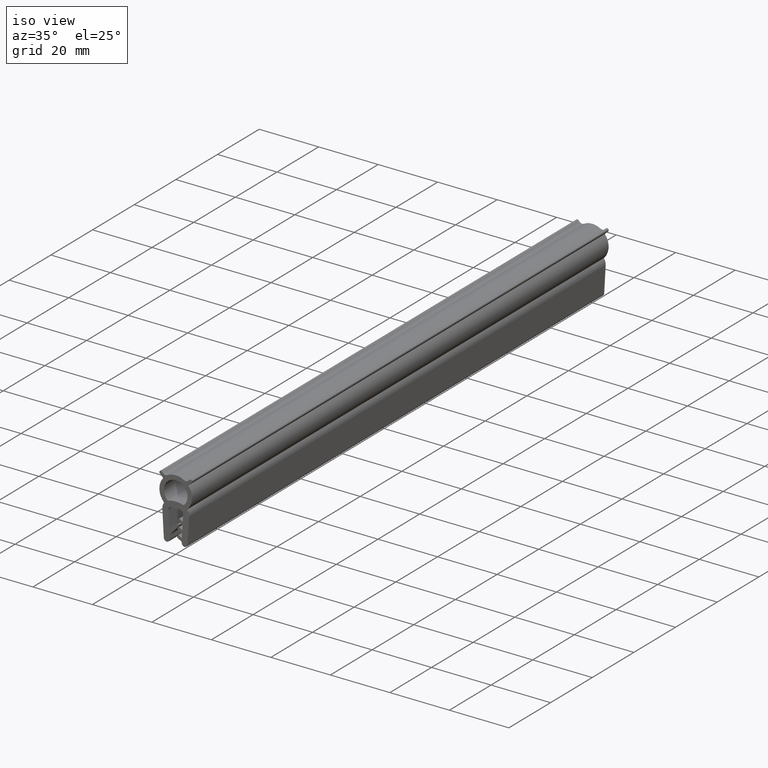
[diagram: clean part render]
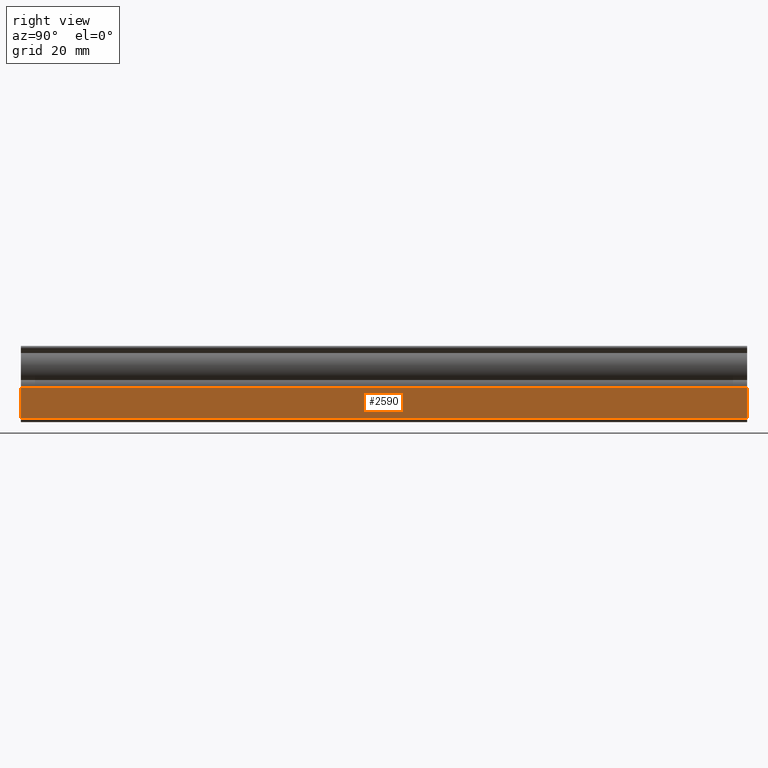
[diagram: tour spotlight — one face highlighted and labeled with its STEP entity id]
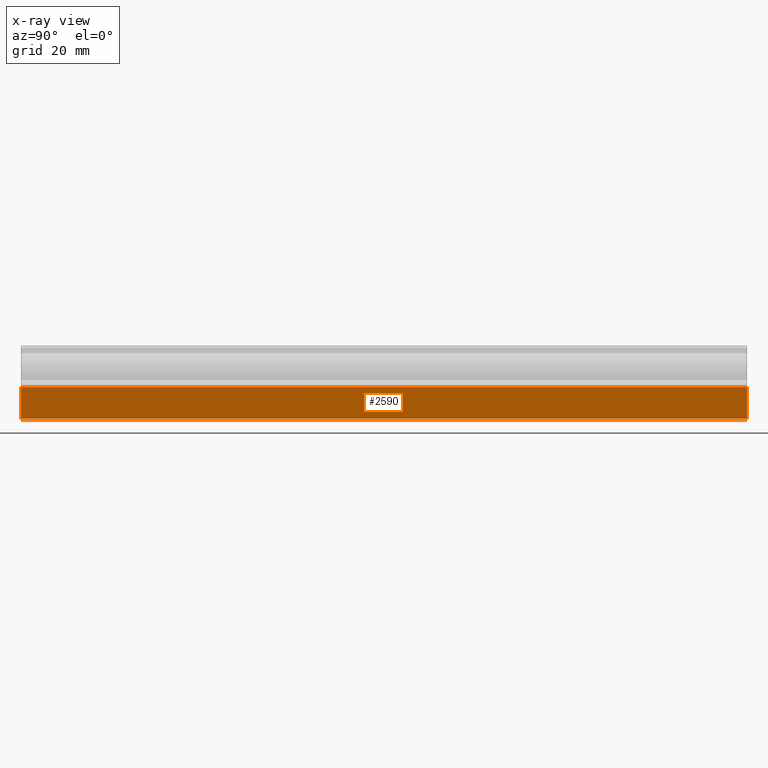
[diagram: x-ray of the same camera — body ghosted, this tour face saturated]
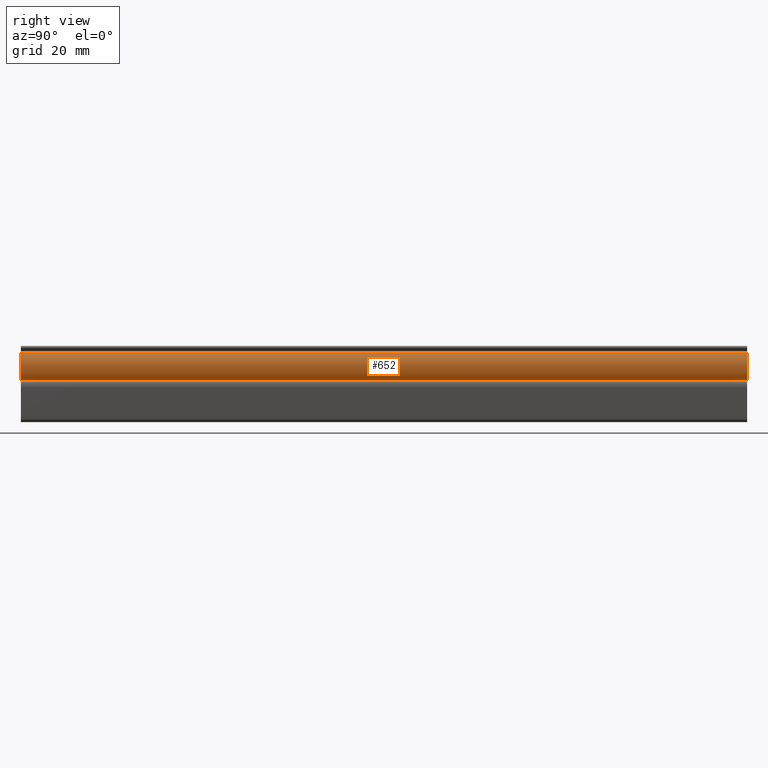
[diagram: tour spotlight — one face highlighted and labeled with its STEP entity id]
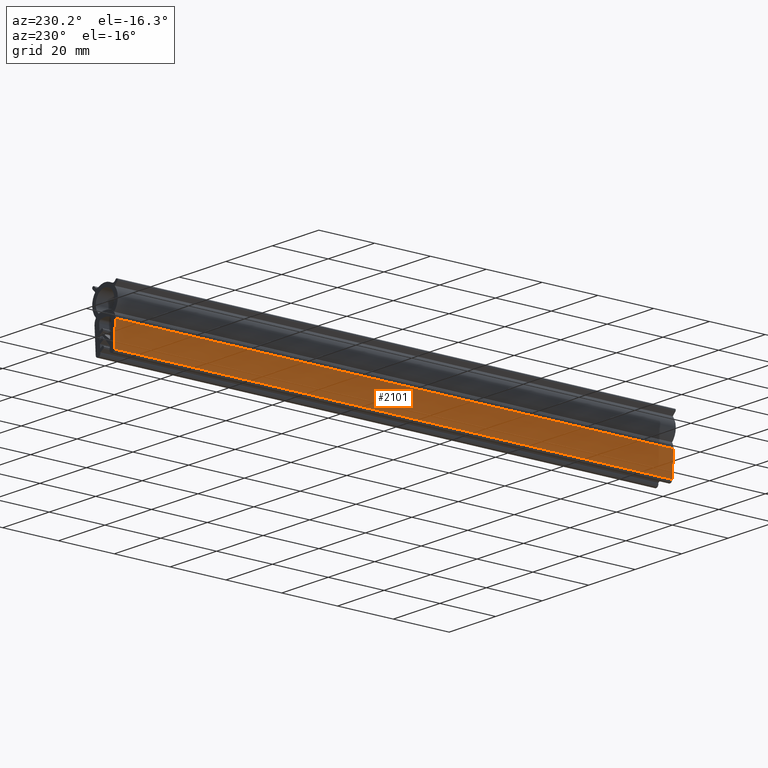
[diagram: tour spotlight — one face highlighted and labeled with its STEP entity id]
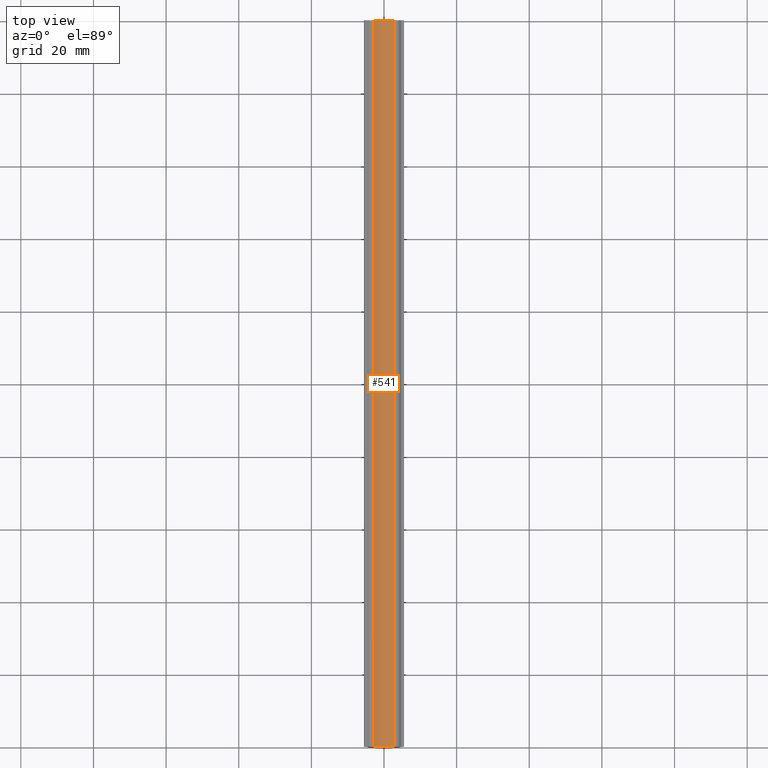
[diagram: tour spotlight — one face highlighted and labeled with its STEP entity id]
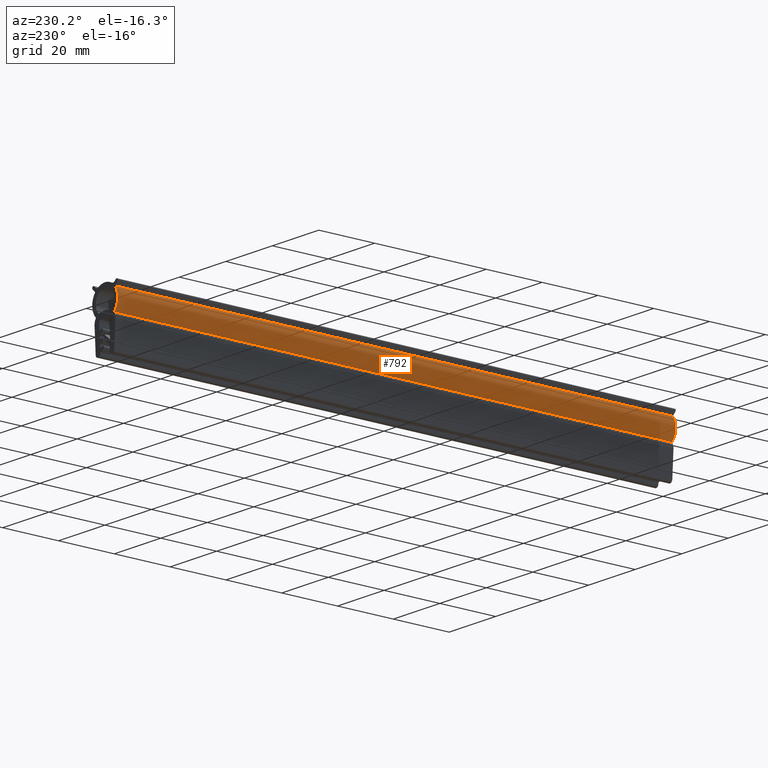
[diagram: tour spotlight — one face highlighted and labeled with its STEP entity id]
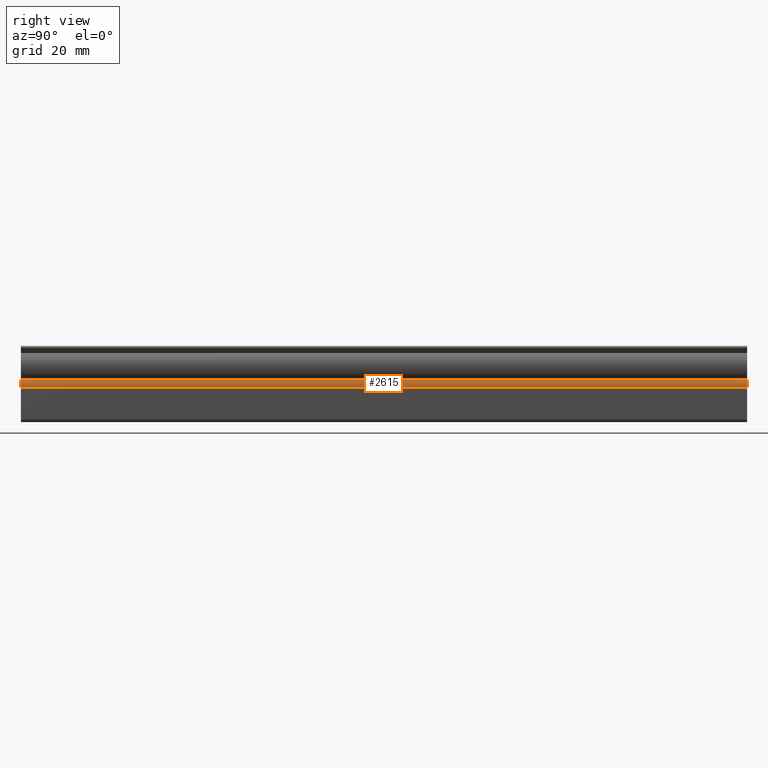
[diagram: tour spotlight — one face highlighted and labeled with its STEP entity id]
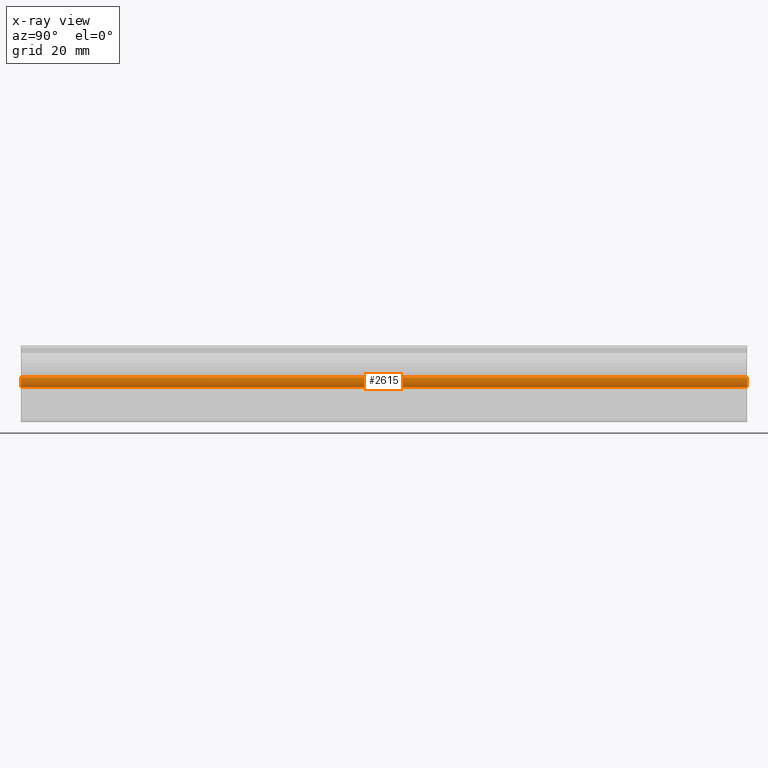
[diagram: x-ray of the same camera — body ghosted, this tour face saturated]
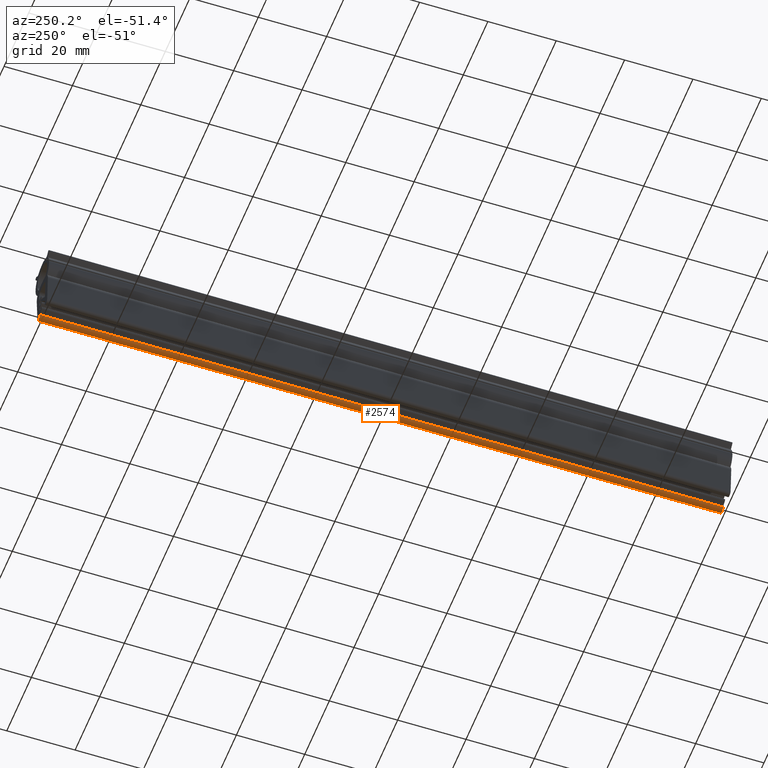
[diagram: tour spotlight — one face highlighted and labeled with its STEP entity id]
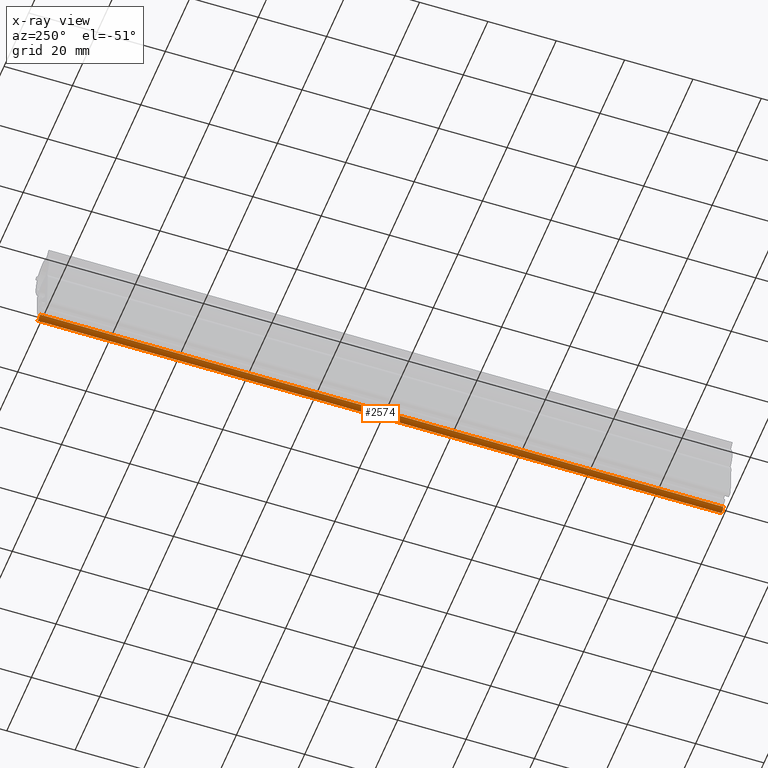
[diagram: x-ray of the same camera — body ghosted, this tour face saturated]
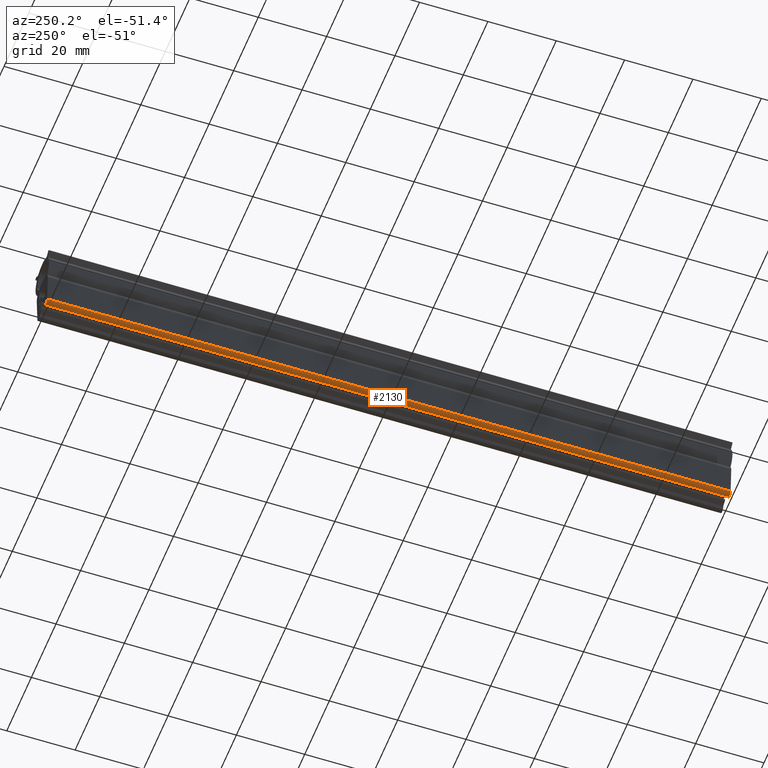
[diagram: tour spotlight — one face highlighted and labeled with its STEP entity id]
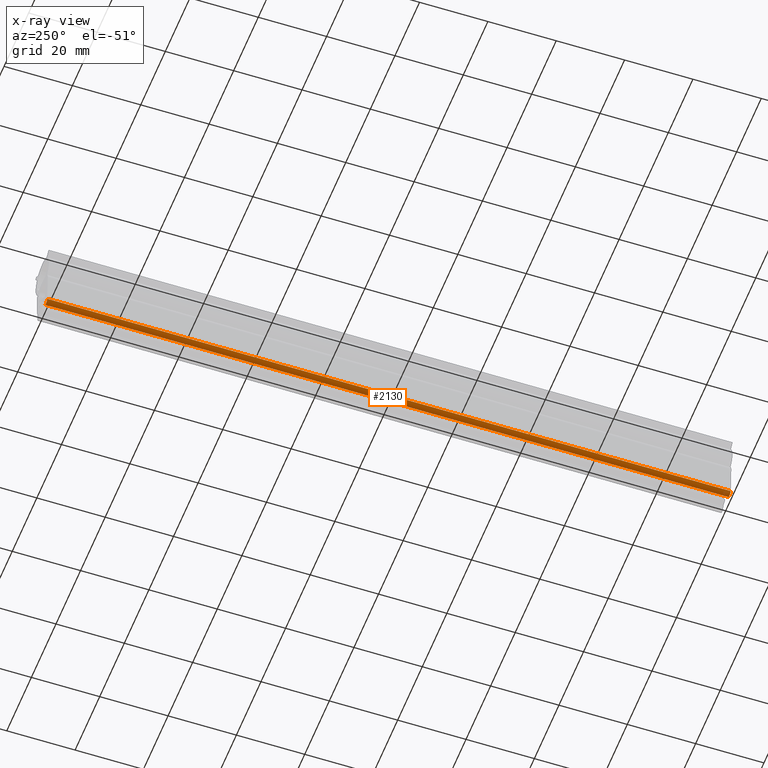
[diagram: x-ray of the same camera — body ghosted, this tour face saturated]
A machine part: a face-by-face anatomy tour. The part has 76 B-rep faces; the first image is the clean iso view, then the 8 largest visible faces are spotlighted one at a time (largest first), each with its STEP entity span.

Face 1 — right view, entity #2590. An x-ray twin of the same camera follows (body ghosted, this face saturated) — the face is partly hidden behind the body. In plain terms, the highlighted face is a freeform B-spline surface patch.
Definition (entity closure, byte-faithful):
#1145=CARTESIAN_POINT('',(3.996700841699980,0.0,-20.057414607798851));
#1146=VERTEX_POINT('',#1145);
#1164=CARTESIAN_POINT('',(4.496700841699891,0.0,-11.363194973417940));
#1165=VERTEX_POINT('',#1164);
#1166=CARTESIAN_POINT('',(4.496700841699891,0.0,-11.363194973417940));
#1167=CARTESIAN_POINT('',(3.996700841699980,0.0,-20.057414607798851));
#1168=QUASI_UNIFORM_CURVE('',1,(#1166,#1167),.UNSPECIFIED.,.F.,.U.);
#1169=EDGE_CURVE('',#1165,#1146,#1168,.T.);
#1379=CARTESIAN_POINT('',(4.496700841699891,200.0,-11.363194973417940));
#1380=VERTEX_POINT('',#1379);
#1394=CARTESIAN_POINT('',(3.996700841699980,200.0,-20.057414607798851));
#1395=VERTEX_POINT('',#1394);
#1396=CARTESIAN_POINT('',(4.496700841699891,200.0,-11.363194973417940));
#1397=CARTESIAN_POINT('',(3.996700841699980,200.0,-20.057414607798851));
#1398=QUASI_UNIFORM_CURVE('',1,(#1396,#1397),.UNSPECIFIED.,.F.,.U.);
#1399=EDGE_CURVE('',#1380,#1395,#1398,.T.);
#2567=CARTESIAN_POINT('',(3.996700841699980,200.0,-20.057414607798851));
#2568=CARTESIAN_POINT('',(3.996700841699980,0.0,-20.057414607798851));
#2569=QUASI_UNIFORM_CURVE('',1,(#2567,#2568),.UNSPECIFIED.,.F.,.U.);
#2570=EDGE_CURVE('',#1395,#1146,#2569,.T.);
#2575=CARTESIAN_POINT('',(3.971725816293582,-9.989999612361183,-20.491691320313912));
#2576=CARTESIAN_POINT('',(4.521675817932426,-9.989999612361183,-10.928919115959060));
#2577=CARTESIAN_POINT('',(3.971725816293582,209.990004976779200,-20.491691320313912));
#2578=CARTESIAN_POINT('',(4.521675817932426,209.990004976779200,-10.928919115959060));
#2579=B_SPLINE_SURFACE_WITH_KNOTS('',1,1,((#2575,#2577),(#2576,#2578)),.UNSPECIFIED.,.F.,.F.,.U.,(2,2),(2,2),(0.0,9.578572818363092),(0.0,219.980004589140410),.UNSPECIFIED.);
#2580=ORIENTED_EDGE('',*,*,#1169,.T.);
#2581=ORIENTED_EDGE('',*,*,#2570,.F.);
#2582=ORIENTED_EDGE('',*,*,#1399,.F.);
#2583=CARTESIAN_POINT('',(4.496700841699891,200.0,-11.363194973417940));
#2584=CARTESIAN_POINT('',(4.496700841699891,0.0,-11.363194973417940));
#2585=QUASI_UNIFORM_CURVE('',1,(#2583,#2584),.UNSPECIFIED.,.F.,.U.);
#2586=EDGE_CURVE('',#1380,#1165,#2585,.T.);
#2587=ORIENTED_EDGE('',*,*,#2586,.T.);
#2588=EDGE_LOOP('',(#2580,#2581,#2582,#2587));
#2589=FACE_OUTER_BOUND('',#2588,.T.);
#2590=ADVANCED_FACE('',(#2589),#2579,.F.);

Face 2 — right view, entity #652. In plain terms, the highlighted face is a freeform B-spline surface patch.
Definition (entity closure, byte-faithful):
#142=CARTESIAN_POINT('',(3.895449830553550,0.0,-9.382714341309141));
#143=VERTEX_POINT('',#142);
#157=CARTESIAN_POINT('',(4.226537165138950,0.0,-1.980570563748675));
#158=VERTEX_POINT('',#157);
#159=CARTESIAN_POINT('',(3.895449830553550,0.0,-9.382714341309141));
#160=CARTESIAN_POINT('',(7.434043253573265,0.0,-5.832514157619680));
#161=CARTESIAN_POINT('',(4.226537165138951,0.0,-1.980570563748674));
#169=(BOUNDED_CURVE()B_SPLINE_CURVE(2,(#159,#160,#161),.UNSPECIFIED.,.F.,.U.)CURVE()GEOMETRIC_REPRESENTATION_ITEM()QUASI_UNIFORM_CURVE()RATIONAL_B_SPLINE_CURVE((1.0,0.739100685796968,1.0))REPRESENTATION_ITEM(''));
#170=EDGE_CURVE('',#143,#158,#169,.T.);
#362=CARTESIAN_POINT('',(4.226537165138950,200.0,-1.980570563748675));
#363=VERTEX_POINT('',#362);
#369=CARTESIAN_POINT('',(3.895449830553550,200.0,-9.382714341309141));
#370=VERTEX_POINT('',#369);
#371=CARTESIAN_POINT('',(3.895449830553550,200.0,-9.382714341309141));
#372=CARTESIAN_POINT('',(7.434043253573265,200.0,-5.832514157619680));
#373=CARTESIAN_POINT('',(4.226537165138951,200.0,-1.980570563748674));
#381=(BOUNDED_CURVE()B_SPLINE_CURVE(2,(#371,#372,#373),.UNSPECIFIED.,.F.,.U.)CURVE()GEOMETRIC_REPRESENTATION_ITEM()QUASI_UNIFORM_CURVE()RATIONAL_B_SPLINE_CURVE((1.0,0.739100685796968,1.0))REPRESENTATION_ITEM(''));
#382=EDGE_CURVE('',#370,#363,#381,.T.);
#618=CARTESIAN_POINT('',(4.226537165138950,200.0,-1.980570563748675));
#619=CARTESIAN_POINT('',(4.226537165138950,0.0,-1.980570563748675));
#620=QUASI_UNIFORM_CURVE('',1,(#618,#619),.UNSPECIFIED.,.F.,.U.);
#621=EDGE_CURVE('',#363,#158,#620,.T.);
#628=CARTESIAN_POINT('',(4.113283814422412,205.0,-1.848850013248490));
#629=CARTESIAN_POINT('',(4.113283814422412,-5.125000000000000,-1.848850013248490));
#630=CARTESIAN_POINT('',(7.786200818797300,205.000000000000030,-5.986655937432516));
#631=CARTESIAN_POINT('',(7.786200818797300,-5.125000000000000,-5.986655937432516));
#632=CARTESIAN_POINT('',(3.626636478842763,205.000000000000030,-9.634913287047144));
#633=CARTESIAN_POINT('',(3.626636478842763,-5.124999999999999,-9.634913287047144));
#641=(BOUNDED_SURFACE()B_SPLINE_SURFACE(1,2,((#628,#630,#632),(#629,#631,#633)),.UNSPECIFIED.,.F.,.F.,.U.)B_SPLINE_SURFACE_WITH_KNOTS((2,2),(3,3),(0.0,210.125000000000000),(0.0,9.151007359667720),.UNSPECIFIED.)GEOMETRIC_REPRESENTATION_ITEM()RATIONAL_B_SPLINE_SURFACE(((1.0,0.703316615285217,0.995224051076921),(1.0,0.703316615285217,0.995224051076921)))REPRESENTATION_ITEM('')SURFACE());
#642=ORIENTED_EDGE('',*,*,#170,.F.);
#643=CARTESIAN_POINT('',(3.895449830553550,200.0,-9.382714341309141));
#644=CARTESIAN_POINT('',(3.895449830553550,0.0,-9.382714341309141));
#645=QUASI_UNIFORM_CURVE('',1,(#643,#644),.UNSPECIFIED.,.F.,.U.);
#646=EDGE_CURVE('',#370,#143,#645,.T.);
#647=ORIENTED_EDGE('',*,*,#646,.F.);
#648=ORIENTED_EDGE('',*,*,#382,.T.);
#649=ORIENTED_EDGE('',*,*,#621,.T.);
#650=EDGE_LOOP('',(#642,#647,#648,#649));
#651=FACE_OUTER_BOUND('',#650,.T.);
#652=ADVANCED_FACE('',(#651),#641,.T.);

Face 3 — auxiliary view, entity #2101. In plain terms, the highlighted face is a freeform B-spline surface patch.
Definition (entity closure, byte-faithful):
#889=CARTESIAN_POINT('',(-4.496700841699860,0.0,-11.363194973418000));
#890=VERTEX_POINT('',#889);
#904=CARTESIAN_POINT('',(-3.996700841700090,0.0,-20.057414607798851));
#905=VERTEX_POINT('',#904);
#906=CARTESIAN_POINT('',(-3.996700841700090,0.0,-20.057414607798851));
#907=CARTESIAN_POINT('',(-4.496700841699860,0.0,-11.363194973418000));
#908=QUASI_UNIFORM_CURVE('',1,(#906,#907),.UNSPECIFIED.,.F.,.U.);
#909=EDGE_CURVE('',#905,#890,#908,.T.);
#1635=CARTESIAN_POINT('',(-3.996700841700090,200.0,-20.057414607798851));
#1636=VERTEX_POINT('',#1635);
#1654=CARTESIAN_POINT('',(-4.496700841699860,200.0,-11.363194973418000));
#1655=VERTEX_POINT('',#1654);
#1656=CARTESIAN_POINT('',(-3.996700841700090,200.0,-20.057414607798851));
#1657=CARTESIAN_POINT('',(-4.496700841699860,200.0,-11.363194973418000));
#1658=QUASI_UNIFORM_CURVE('',1,(#1656,#1657),.UNSPECIFIED.,.F.,.U.);
#1659=EDGE_CURVE('',#1636,#1655,#1658,.T.);
#1832=CARTESIAN_POINT('',(-4.496700841699860,200.0,-11.363194973418000));
#1833=CARTESIAN_POINT('',(-4.496700841699860,0.0,-11.363194973418000));
#1834=QUASI_UNIFORM_CURVE('',1,(#1832,#1833),.UNSPECIFIED.,.F.,.U.);
#1835=EDGE_CURVE('',#1655,#890,#1834,.T.);
#2086=CARTESIAN_POINT('',(-4.521675817262542,-9.989999612361194,-10.928919127607330));
#2087=CARTESIAN_POINT('',(-3.971725830374560,-9.989999612361194,-20.491691075468559));
#2088=CARTESIAN_POINT('',(-4.521675817262542,209.990004976779200,-10.928919127607330));
#2089=CARTESIAN_POINT('',(-3.971725830374560,209.990004976779200,-20.491691075468559));
#2090=B_SPLINE_SURFACE_WITH_KNOTS('',1,1,((#2086,#2088),(#2087,#2089)),.UNSPECIFIED.,.F.,.F.,.U.,(2,2),(2,2),(0.0,9.578572561445666),(0.0,219.980004589140410),.UNSPECIFIED.);
#2091=ORIENTED_EDGE('',*,*,#909,.T.);
#2092=ORIENTED_EDGE('',*,*,#1835,.F.);
#2093=ORIENTED_EDGE('',*,*,#1659,.F.);
#2094=CARTESIAN_POINT('',(-3.996700841700090,200.0,-20.057414607798851));
#2095=CARTESIAN_POINT('',(-3.996700841700090,0.0,-20.057414607798851));
#2096=QUASI_UNIFORM_CURVE('',1,(#2094,#2095),.UNSPECIFIED.,.F.,.U.);
#2097=EDGE_CURVE('',#1636,#905,#2096,.T.);
#2098=ORIENTED_EDGE('',*,*,#2097,.T.);
#2099=EDGE_LOOP('',(#2091,#2092,#2093,#2098));
#2100=FACE_OUTER_BOUND('',#2099,.T.);
#2101=ADVANCED_FACE('',(#2100),#2090,.F.);

Face 4 — top view, entity #541. In plain terms, the highlighted face is a freeform B-spline surface patch.
Definition (entity closure, byte-faithful):
#205=CARTESIAN_POINT('',(2.774911744944005,0.0,-0.751330199955418));
#206=VERTEX_POINT('',#205);
#220=CARTESIAN_POINT('',(-2.774911738046120,0.0,-0.751330207427227));
#221=VERTEX_POINT('',#220);
#222=CARTESIAN_POINT('',(2.774911744944005,0.0,-0.751330199955418));
#223=CARTESIAN_POINT('',(1.265847E-009,0.0,0.870204983072101));
#224=CARTESIAN_POINT('',(-2.774911738046119,0.0,-0.751330207427225));
#232=(BOUNDED_CURVE()B_SPLINE_CURVE(2,(#222,#223,#224),.UNSPECIFIED.,.F.,.U.)CURVE()GEOMETRIC_REPRESENTATION_ITEM()QUASI_UNIFORM_CURVE()RATIONAL_B_SPLINE_CURVE((1.0,0.863394508543101,1.0))REPRESENTATION_ITEM(''));
#233=EDGE_CURVE('',#206,#221,#232,.T.);
#291=CARTESIAN_POINT('',(-2.774911738046120,200.0,-0.751330207427227));
#292=VERTEX_POINT('',#291);
#306=CARTESIAN_POINT('',(2.774911744944005,200.0,-0.751330199955418));
#307=VERTEX_POINT('',#306);
#308=CARTESIAN_POINT('',(2.774911744944038,200.0,-0.751330199955362));
#309=CARTESIAN_POINT('',(1.265847E-009,200.000000000000060,0.870204983072101));
#310=CARTESIAN_POINT('',(-2.774911738046119,200.0,-0.751330207427225));
#318=(BOUNDED_CURVE()B_SPLINE_CURVE(2,(#308,#309,#310),.UNSPECIFIED.,.F.,.U.)CURVE()GEOMETRIC_REPRESENTATION_ITEM()QUASI_UNIFORM_CURVE()RATIONAL_B_SPLINE_CURVE((1.0,0.863394508543101,1.0))REPRESENTATION_ITEM(''));
#319=EDGE_CURVE('',#307,#292,#318,.T.);
#507=CARTESIAN_POINT('',(-2.774911738046120,200.0,-0.751330207427227));
#508=CARTESIAN_POINT('',(-2.774911738046120,0.0,-0.751330207427227));
#509=QUASI_UNIFORM_CURVE('',1,(#507,#508),.UNSPECIFIED.,.F.,.U.);
#510=EDGE_CURVE('',#292,#221,#509,.T.);
#517=CARTESIAN_POINT('',(-2.930809904855420,205.0,-0.845931537642426));
#518=CARTESIAN_POINT('',(-2.930809904855420,-5.125000000000000,-0.845931537642426));
#519=CARTESIAN_POINT('',(0.056252203980269,205.000000000000030,1.035113252708115));
#520=CARTESIAN_POINT('',(0.056252203980269,-5.124999999999999,1.035113252708115));
#521=CARTESIAN_POINT('',(3.010491227762481,204.999999999999970,-0.897072384260844));
#522=CARTESIAN_POINT('',(3.010491227762481,-5.125000000000000,-0.897072384260844));
#530=(BOUNDED_SURFACE()B_SPLINE_SURFACE(1,2,((#517,#519,#521),(#518,#520,#522)),.UNSPECIFIED.,.F.,.F.,.U.)B_SPLINE_SURFACE_WITH_KNOTS((2,2),(3,3),(0.0,210.125000000000000),(0.0,6.452617563013595),.UNSPECIFIED.)GEOMETRIC_REPRESENTATION_ITEM()RATIONAL_B_SPLINE_SURFACE(((1.0,0.838106973137517,0.991772226403228),(1.0,0.838106973137517,0.991772226403228)))REPRESENTATION_ITEM('')SURFACE());
#531=ORIENTED_EDGE('',*,*,#233,.F.);
#532=CARTESIAN_POINT('',(2.774911744944005,200.0,-0.751330199955418));
#533=CARTESIAN_POINT('',(2.774911744944005,0.0,-0.751330199955418));
#534=QUASI_UNIFORM_CURVE('',1,(#532,#533),.UNSPECIFIED.,.F.,.U.);
#535=EDGE_CURVE('',#307,#206,#534,.T.);
#536=ORIENTED_EDGE('',*,*,#535,.F.);
#537=ORIENTED_EDGE('',*,*,#319,.T.);
#538=ORIENTED_EDGE('',*,*,#510,.T.);
#539=EDGE_LOOP('',(#531,#536,#537,#538));
#540=FACE_OUTER_BOUND('',#539,.T.);
#541=ADVANCED_FACE('',(#540),#530,.T.);

Face 5 — auxiliary view, entity #792. In plain terms, the highlighted face is a freeform B-spline surface patch.
Definition (entity closure, byte-faithful):
#70=CARTESIAN_POINT('',(-4.226531530193941,0.0,-1.980575255954845));
#71=VERTEX_POINT('',#70);
#77=CARTESIAN_POINT('',(-3.895449688789145,0.0,-9.382714153637581));
#78=VERTEX_POINT('',#77);
#79=CARTESIAN_POINT('',(-4.226531530193941,0.0,-1.980575255954845));
#80=CARTESIAN_POINT('',(-7.434037990571560,0.0,-5.832513899972111));
#81=CARTESIAN_POINT('',(-3.895449688789152,0.0,-9.382714153637586));
#89=(BOUNDED_CURVE()B_SPLINE_CURVE(2,(#79,#80,#81),.UNSPECIFIED.,.F.,.U.)CURVE()GEOMETRIC_REPRESENTATION_ITEM()QUASI_UNIFORM_CURVE()RATIONAL_B_SPLINE_CURVE((1.0,0.739100700805323,1.0))REPRESENTATION_ITEM(''));
#90=EDGE_CURVE('',#71,#78,#89,.T.);
#434=CARTESIAN_POINT('',(-3.895449688789145,200.0,-9.382714153637581));
#435=VERTEX_POINT('',#434);
#449=CARTESIAN_POINT('',(-4.226531530193941,200.0,-1.980575255954845));
#450=VERTEX_POINT('',#449);
#451=CARTESIAN_POINT('',(-4.226531530193926,200.0,-1.980575255954858));
#452=CARTESIAN_POINT('',(-7.434037990571560,200.000000000000030,-5.832513899972111));
#453=CARTESIAN_POINT('',(-3.895449688789152,200.0,-9.382714153637586));
#461=(BOUNDED_CURVE()B_SPLINE_CURVE(2,(#451,#452,#453),.UNSPECIFIED.,.F.,.U.)CURVE()GEOMETRIC_REPRESENTATION_ITEM()QUASI_UNIFORM_CURVE()RATIONAL_B_SPLINE_CURVE((1.0,0.739100700805323,1.0))REPRESENTATION_ITEM(''));
#462=EDGE_CURVE('',#450,#435,#461,.T.);
#758=CARTESIAN_POINT('',(-3.895449688789145,200.0,-9.382714153637581));
#759=CARTESIAN_POINT('',(-3.895449688789145,0.0,-9.382714153637581));
#760=QUASI_UNIFORM_CURVE('',1,(#758,#759),.UNSPECIFIED.,.F.,.U.);
#761=EDGE_CURVE('',#435,#78,#760,.T.);
#768=CARTESIAN_POINT('',(-3.770888768755642,205.0,-9.503797789945175));
#769=CARTESIAN_POINT('',(-3.770888768755642,-5.125000000000000,-9.503797789945175));
#770=CARTESIAN_POINT('',(-7.798550649684684,205.000000000000060,-5.710427771257771));
#771=CARTESIAN_POINT('',(-7.798550649684684,-5.125000000000000,-5.710427771257771));
#772=CARTESIAN_POINT('',(-3.981307560058686,205.000000000000060,-1.705384510509153));
#773=CARTESIAN_POINT('',(-3.981307560058686,-5.125000000000001,-1.705384510509153));
#781=(BOUNDED_SURFACE()B_SPLINE_SURFACE(1,2,((#768,#770,#772),(#769,#771,#773)),.UNSPECIFIED.,.F.,.F.,.U.)B_SPLINE_SURFACE_WITH_KNOTS((2,2),(3,3),(0.0,210.125000000000000),(0.0,9.151001254306811),.UNSPECIFIED.)GEOMETRIC_REPRESENTATION_ITEM()RATIONAL_B_SPLINE_SURFACE(((1.0,0.703316615452180,0.995224050748371),(1.0,0.703316615452180,0.995224050748371)))REPRESENTATION_ITEM('')SURFACE());
#782=ORIENTED_EDGE('',*,*,#90,.F.);
#783=CARTESIAN_POINT('',(-4.226531530193941,200.0,-1.980575255954845));
#784=CARTESIAN_POINT('',(-4.226531530193941,0.0,-1.980575255954845));
#785=QUASI_UNIFORM_CURVE('',1,(#783,#784),.UNSPECIFIED.,.F.,.U.);
#786=EDGE_CURVE('',#450,#71,#785,.T.);
#787=ORIENTED_EDGE('',*,*,#786,.F.);
#788=ORIENTED_EDGE('',*,*,#462,.T.);
#789=ORIENTED_EDGE('',*,*,#761,.T.);
#790=EDGE_LOOP('',(#782,#787,#788,#789));
#791=FACE_OUTER_BOUND('',#790,.T.);
#792=ADVANCED_FACE('',(#791),#781,.T.);

Face 6 — right view, entity #2615. An x-ray twin of the same camera follows (body ghosted, this face saturated) — the face is partly hidden behind the body. In plain terms, the highlighted face is a freeform B-spline surface patch.
Definition (entity closure, byte-faithful):
#1164=CARTESIAN_POINT('',(4.496700841699891,0.0,-11.363194973417940));
#1165=VERTEX_POINT('',#1164);
#1171=CARTESIAN_POINT('',(3.074814059801380,0.0,-8.636513145915849));
#1172=VERTEX_POINT('',#1171);
#1173=CARTESIAN_POINT('',(4.496700841699885,0.0,-11.363194973417940));
#1174=CARTESIAN_POINT('',(4.599509931628474,0.0,-9.575505356922470));
#1175=CARTESIAN_POINT('',(3.074814059801380,0.0,-8.636513145915849));
#1183=(BOUNDED_CURVE()B_SPLINE_CURVE(2,(#1173,#1174,#1175),.UNSPECIFIED.,.F.,.U.)CURVE()GEOMETRIC_REPRESENTATION_ITEM()QUASI_UNIFORM_CURVE()RATIONAL_B_SPLINE_CURVE((1.0,0.858672169221370,1.0))REPRESENTATION_ITEM(''));
#1184=EDGE_CURVE('',#1165,#1172,#1183,.T.);
#1372=CARTESIAN_POINT('',(3.074814059801380,200.0,-8.636513145915849));
#1373=VERTEX_POINT('',#1372);
#1379=CARTESIAN_POINT('',(4.496700841699891,200.0,-11.363194973417940));
#1380=VERTEX_POINT('',#1379);
#1381=CARTESIAN_POINT('',(4.496700841699885,200.0,-11.363194973417940));
#1382=CARTESIAN_POINT('',(4.599509931628474,200.000000000000030,-9.575505356922470));
#1383=CARTESIAN_POINT('',(3.074814059801408,200.0,-8.636513145915808));
#1391=(BOUNDED_CURVE()B_SPLINE_CURVE(2,(#1381,#1382,#1383),.UNSPECIFIED.,.F.,.U.)CURVE()GEOMETRIC_REPRESENTATION_ITEM()QUASI_UNIFORM_CURVE()RATIONAL_B_SPLINE_CURVE((1.0,0.858672169221370,1.0))REPRESENTATION_ITEM(''));
#1392=EDGE_CURVE('',#1380,#1373,#1391,.T.);
#2583=CARTESIAN_POINT('',(4.496700841699891,200.0,-11.363194973417940));
#2584=CARTESIAN_POINT('',(4.496700841699891,0.0,-11.363194973417940));
#2585=QUASI_UNIFORM_CURVE('',1,(#2583,#2584),.UNSPECIFIED.,.F.,.U.);
#2586=EDGE_CURVE('',#1380,#1165,#2585,.T.);
#2591=CARTESIAN_POINT('',(3.007407584035415,205.0,-8.596207842731506));
#2592=CARTESIAN_POINT('',(3.007407584035415,-5.125000000000000,-8.596207842731506));
#2593=CARTESIAN_POINT('',(4.692453590187622,205.0,-9.574058524622021));
#2594=CARTESIAN_POINT('',(4.692453590187622,-5.125000000000000,-9.574058524622021));
#2595=CARTESIAN_POINT('',(4.484512497464453,205.0,-11.511152353242711));
#2596=CARTESIAN_POINT('',(4.484512497464453,-5.125000000000000,-11.511152353242711));
#2604=(BOUNDED_SURFACE()B_SPLINE_SURFACE(1,2,((#2591,#2593,#2595),(#2592,#2594,#2596)),.UNSPECIFIED.,.F.,.F.,.U.)B_SPLINE_SURFACE_WITH_KNOTS((2,2),(3,3),(0.0,210.125000000000000),(0.0,3.554561939544963),.UNSPECIFIED.)GEOMETRIC_REPRESENTATION_ITEM()RATIONAL_B_SPLINE_SURFACE(((1.0,0.838670567945424,1.0),(1.0,0.838670567945424,1.0)))REPRESENTATION_ITEM('')SURFACE());
#2605=ORIENTED_EDGE('',*,*,#1184,.F.);
#2606=ORIENTED_EDGE('',*,*,#2586,.F.);
#2607=ORIENTED_EDGE('',*,*,#1392,.T.);
#2608=CARTESIAN_POINT('',(3.074814059801380,200.0,-8.636513145915849));
#2609=CARTESIAN_POINT('',(3.074814059801380,0.0,-8.636513145915849));
#2610=QUASI_UNIFORM_CURVE('',1,(#2608,#2609),.UNSPECIFIED.,.F.,.U.);
#2611=EDGE_CURVE('',#1373,#1172,#2610,.T.);
#2612=ORIENTED_EDGE('',*,*,#2611,.T.);
#2613=EDGE_LOOP('',(#2605,#2606,#2607,#2612));
#2614=FACE_OUTER_BOUND('',#2613,.T.);
#2615=ADVANCED_FACE('',(#2614),#2604,.T.);

Face 7 — auxiliary view, entity #2574. An x-ray twin of the same camera follows (body ghosted, this face saturated) — the face is partly hidden behind the body. In plain terms, the highlighted face is a freeform B-spline surface patch.
Definition (entity closure, byte-faithful):
#1138=CARTESIAN_POINT('',(2.0,0.0,-19.942585392201050));
#1139=VERTEX_POINT('',#1138);
#1145=CARTESIAN_POINT('',(3.996700841699980,0.0,-20.057414607798851));
#1146=VERTEX_POINT('',#1145);
#1147=CARTESIAN_POINT('',(2.0,0.0,-19.942585392201050));
#1148=CARTESIAN_POINT('',(1.966851660731857,0.0,-20.518983276424390));
#1149=CARTESIAN_POINT('',(2.449452701522811,0.0,-20.835889522435519));
#1150=CARTESIAN_POINT('',(2.932053742313765,0.0,-21.152795768446648));
#1151=CARTESIAN_POINT('',(3.447803122372834,0.0,-20.893304130234419));
#1152=CARTESIAN_POINT('',(3.963552502431902,0.0,-20.633812492022187));
#1153=CARTESIAN_POINT('',(3.996700841699985,0.0,-20.057414607798851));
#1161=(BOUNDED_CURVE()B_SPLINE_CURVE(2,(#1147,#1148,#1149,#1150,#1151,#1152,#1153),.UNSPECIFIED.,.F.,.U.)B_SPLINE_CURVE_WITH_KNOTS((3,2,2,3),(0.0,0.333333333333333,0.666666666666667,1.0),.UNSPECIFIED.)CURVE()GEOMETRIC_REPRESENTATION_ITEM()RATIONAL_B_SPLINE_CURVE((1.0,0.866025403784430,1.0,0.866025403784430,1.0,0.866025403784430,1.0))REPRESENTATION_ITEM(''));
#1162=EDGE_CURVE('',#1139,#1146,#1161,.T.);
#1394=CARTESIAN_POINT('',(3.996700841699980,200.0,-20.057414607798851));
#1395=VERTEX_POINT('',#1394);
#1401=CARTESIAN_POINT('',(2.0,200.0,-19.942585392201050));
#1402=VERTEX_POINT('',#1401);
#1403=CARTESIAN_POINT('',(2.0,200.0,-19.942585392201050));
#1404=CARTESIAN_POINT('',(1.966851660731857,200.0,-20.518983276424390));
#1405=CARTESIAN_POINT('',(2.449452701522811,200.0,-20.835889522435519));
#1406=CARTESIAN_POINT('',(2.932053742313765,200.0,-21.152795768446648));
#1407=CARTESIAN_POINT('',(3.447803122372834,200.0,-20.893304130234419));
#1408=CARTESIAN_POINT('',(3.963552502431902,200.0,-20.633812492022187));
#1409=CARTESIAN_POINT('',(3.996700841699985,200.0,-20.057414607798851));
#1417=(BOUNDED_CURVE()B_SPLINE_CURVE(2,(#1403,#1404,#1405,#1406,#1407,#1408,#1409),.UNSPECIFIED.,.F.,.U.)B_SPLINE_CURVE_WITH_KNOTS((3,2,2,3),(0.0,0.333333333333333,0.666666666666667,1.0),.UNSPECIFIED.)CURVE()GEOMETRIC_REPRESENTATION_ITEM()RATIONAL_B_SPLINE_CURVE((1.0,0.866025403784430,1.0,0.866025403784430,1.0,0.866025403784430,1.0))REPRESENTATION_ITEM(''));
#1418=EDGE_CURVE('',#1402,#1395,#1417,.T.);
#2538=CARTESIAN_POINT('',(2.0,200.0,-19.942585392201050));
#2539=CARTESIAN_POINT('',(2.0,0.0,-19.942585392201050));
#2540=QUASI_UNIFORM_CURVE('',1,(#2538,#2539),.UNSPECIFIED.,.F.,.U.);
#2541=EDGE_CURVE('',#1402,#1139,#2540,.T.);
#2546=CARTESIAN_POINT('',(3.997861671165586,205.0,-20.031261165886981));
#2547=CARTESIAN_POINT('',(3.997861671165586,-5.125000000000000,-20.031261165886981));
#2548=CARTESIAN_POINT('',(3.965205831250632,205.000000000000110,-21.075364239377762));
#2549=CARTESIAN_POINT('',(3.965205831250632,-5.125000000000000,-21.075364239377762));
#2550=CARTESIAN_POINT('',(2.923520940262501,205.0,-20.997196344174540));
#2551=CARTESIAN_POINT('',(2.923520940262501,-5.125000000000000,-20.997196344174540));
#2552=CARTESIAN_POINT('',(1.881836049274367,205.000000000000110,-20.919028448971311));
#2553=CARTESIAN_POINT('',(1.881836049274367,-5.125000000000000,-20.919028448971311));
#2554=CARTESIAN_POINT('',(2.005367202734581,205.0,-19.881744646881319));
#2555=CARTESIAN_POINT('',(2.005367202734581,-5.125000000000000,-19.881744646881319));
#2563=(BOUNDED_SURFACE()B_SPLINE_SURFACE(1,2,((#2546,#2548,#2550,#2552,#2554),(#2547,#2549,#2551,#2553,#2555)),.UNSPECIFIED.,.F.,.F.,.U.)B_SPLINE_SURFACE_WITH_KNOTS((2,2),(3,2,3),(0.0,210.125000000000000),(0.0,1.0,2.0),.UNSPECIFIED.)GEOMETRIC_REPRESENTATION_ITEM()RATIONAL_B_SPLINE_SURFACE(((1.0,0.691513055782269,1.0,0.691513055782269,1.0),(1.0,0.691513055782269,1.0,0.691513055782269,1.0)))REPRESENTATION_ITEM('')SURFACE());
#2564=ORIENTED_EDGE('',*,*,#1162,.F.);
#2565=ORIENTED_EDGE('',*,*,#2541,.F.);
#2566=ORIENTED_EDGE('',*,*,#1418,.T.);
#2567=CARTESIAN_POINT('',(3.996700841699980,200.0,-20.057414607798851));
#2568=CARTESIAN_POINT('',(3.996700841699980,0.0,-20.057414607798851));
#2569=QUASI_UNIFORM_CURVE('',1,(#2567,#2568),.UNSPECIFIED.,.F.,.U.);
#2570=EDGE_CURVE('',#1395,#1146,#2569,.T.);
#2571=ORIENTED_EDGE('',*,*,#2570,.T.);
#2572=EDGE_LOOP('',(#2564,#2565,#2566,#2571));
#2573=FACE_OUTER_BOUND('',#2572,.T.);
#2574=ADVANCED_FACE('',(#2573),#2563,.T.);

Face 8 — auxiliary view, entity #2130. An x-ray twin of the same camera follows (body ghosted, this face saturated) — the face is partly hidden behind the body. In plain terms, the highlighted face is a freeform B-spline surface patch.
Definition (entity closure, byte-faithful):
#904=CARTESIAN_POINT('',(-3.996700841700090,0.0,-20.057414607798851));
#905=VERTEX_POINT('',#904);
#911=CARTESIAN_POINT('',(-2.000000000000110,0.0,-19.942585392200950));
#912=VERTEX_POINT('',#911);
#913=CARTESIAN_POINT('',(-3.996700841700088,0.0,-20.057414607798851));
#914=CARTESIAN_POINT('',(-3.963552502432004,0.0,-20.633812492022276));
#915=CARTESIAN_POINT('',(-3.447803122372853,0.0,-20.893304130234529));
#916=CARTESIAN_POINT('',(-2.932053742313703,0.0,-21.152795768446776));
#917=CARTESIAN_POINT('',(-2.449452701522699,0.0,-20.835889522435568));
#918=CARTESIAN_POINT('',(-1.966851660731696,0.0,-20.518983276424361));
#919=CARTESIAN_POINT('',(-2.000000000000110,0.0,-19.942585392200950));
#927=(BOUNDED_CURVE()B_SPLINE_CURVE(2,(#913,#914,#915,#916,#917,#918,#919),.UNSPECIFIED.,.F.,.U.)B_SPLINE_CURVE_WITH_KNOTS((3,2,2,3),(0.0,0.333333333333333,0.666666666666667,1.0),.UNSPECIFIED.)CURVE()GEOMETRIC_REPRESENTATION_ITEM()RATIONAL_B_SPLINE_CURVE((1.0,0.866025403784421,1.0,0.866025403784421,1.0,0.866025403784421,1.0))REPRESENTATION_ITEM(''));
#928=EDGE_CURVE('',#905,#912,#927,.T.);
#1628=CARTESIAN_POINT('',(-2.000000000000110,200.0,-19.942585392200950));
#1629=VERTEX_POINT('',#1628);
#1635=CARTESIAN_POINT('',(-3.996700841700090,200.0,-20.057414607798851));
#1636=VERTEX_POINT('',#1635);
#1637=CARTESIAN_POINT('',(-3.996700841700088,200.0,-20.057414607798851));
#1638=CARTESIAN_POINT('',(-3.963552502432004,200.0,-20.633812492022276));
#1639=CARTESIAN_POINT('',(-3.447803122372853,200.0,-20.893304130234529));
#1640=CARTESIAN_POINT('',(-2.932053742313703,200.0,-21.152795768446776));
#1641=CARTESIAN_POINT('',(-2.449452701522699,200.0,-20.835889522435568));
#1642=CARTESIAN_POINT('',(-1.966851660731696,200.0,-20.518983276424361));
#1643=CARTESIAN_POINT('',(-1.999999999999904,200.0,-19.942585392200940));
#1651=(BOUNDED_CURVE()B_SPLINE_CURVE(2,(#1637,#1638,#1639,#1640,#1641,#1642,#1643),.UNSPECIFIED.,.F.,.U.)B_SPLINE_CURVE_WITH_KNOTS((3,2,2,3),(0.0,0.333333333333333,0.666666666666667,1.0),.UNSPECIFIED.)CURVE()GEOMETRIC_REPRESENTATION_ITEM()RATIONAL_B_SPLINE_CURVE((1.0,0.866025403784421,1.0,0.866025403784421,1.0,0.866025403784421,1.0))REPRESENTATION_ITEM(''));
#1652=EDGE_CURVE('',#1636,#1629,#1651,.T.);
#2094=CARTESIAN_POINT('',(-3.996700841700090,200.0,-20.057414607798851));
#2095=CARTESIAN_POINT('',(-3.996700841700090,0.0,-20.057414607798851));
#2096=QUASI_UNIFORM_CURVE('',1,(#2094,#2095),.UNSPECIFIED.,.F.,.U.);
#2097=EDGE_CURVE('',#1636,#905,#2096,.T.);
#2102=CARTESIAN_POINT('',(-2.000539044737897,205.0,-19.933875437985911));
#2103=CARTESIAN_POINT('',(-2.000539044737897,-5.125000000000000,-19.933875437985911));
#2104=CARTESIAN_POINT('',(-1.932065056286181,205.000000000000030,-20.967139365395074));
#2105=CARTESIAN_POINT('',(-1.932065056286181,-5.125000000000000,-20.967139365395074));
#2106=CARTESIAN_POINT('',(-2.967089254962795,205.0,-20.999511250315692));
#2107=CARTESIAN_POINT('',(-2.967089254962795,-5.125000000000000,-20.999511250315692));
#2108=CARTESIAN_POINT('',(-4.002113453639408,205.000000000000030,-21.031883135236313));
#2109=CARTESIAN_POINT('',(-4.002113453639408,-5.125000000000000,-21.031883135236313));
#2110=CARTESIAN_POINT('',(-3.998343794873678,205.0,-19.996359682845078));
#2111=CARTESIAN_POINT('',(-3.998343794873678,-5.125000000000000,-19.996359682845078));
#2119=(BOUNDED_SURFACE()B_SPLINE_SURFACE(1,2,((#2102,#2104,#2106,#2108,#2110),(#2103,#2105,#2107,#2109,#2111)),.UNSPECIFIED.,.F.,.F.,.U.)B_SPLINE_SURFACE_WITH_KNOTS((2,2),(3,2,3),(0.0,210.125000000000110),(0.0,1.0,2.0),.UNSPECIFIED.)GEOMETRIC_REPRESENTATION_ITEM()RATIONAL_B_SPLINE_SURFACE(((1.0,0.694658370458997,1.0,0.694658370458997,1.0),(1.0,0.694658370458997,1.0,0.694658370458997,1.0)))REPRESENTATION_ITEM('')SURFACE());
#2120=ORIENTED_EDGE('',*,*,#928,.F.);
#2121=ORIENTED_EDGE('',*,*,#2097,.F.);
#2122=ORIENTED_EDGE('',*,*,#1652,.T.);
#2123=CARTESIAN_POINT('',(-2.000000000000110,200.0,-19.942585392200950));
#2124=CARTESIAN_POINT('',(-2.000000000000110,0.0,-19.942585392200950));
#2125=QUASI_UNIFORM_CURVE('',1,(#2123,#2124),.UNSPECIFIED.,.F.,.U.);
#2126=EDGE_CURVE('',#1629,#912,#2125,.T.);
#2127=ORIENTED_EDGE('',*,*,#2126,.T.);
#2128=EDGE_LOOP('',(#2120,#2121,#2122,#2127));
#2129=FACE_OUTER_BOUND('',#2128,.T.);
#2130=ADVANCED_FACE('',(#2129),#2119,.T.);